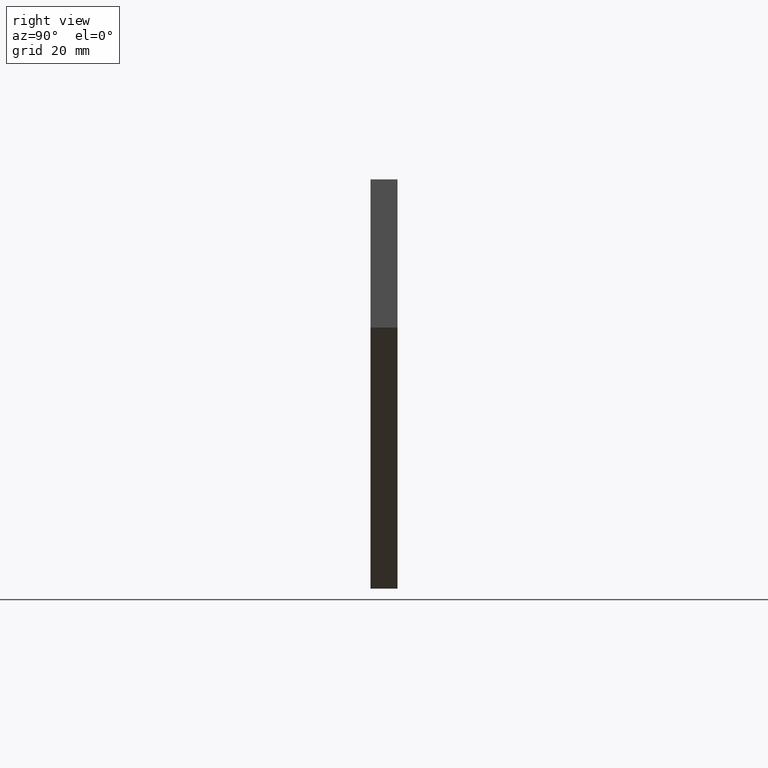
[diagram: clean part render]
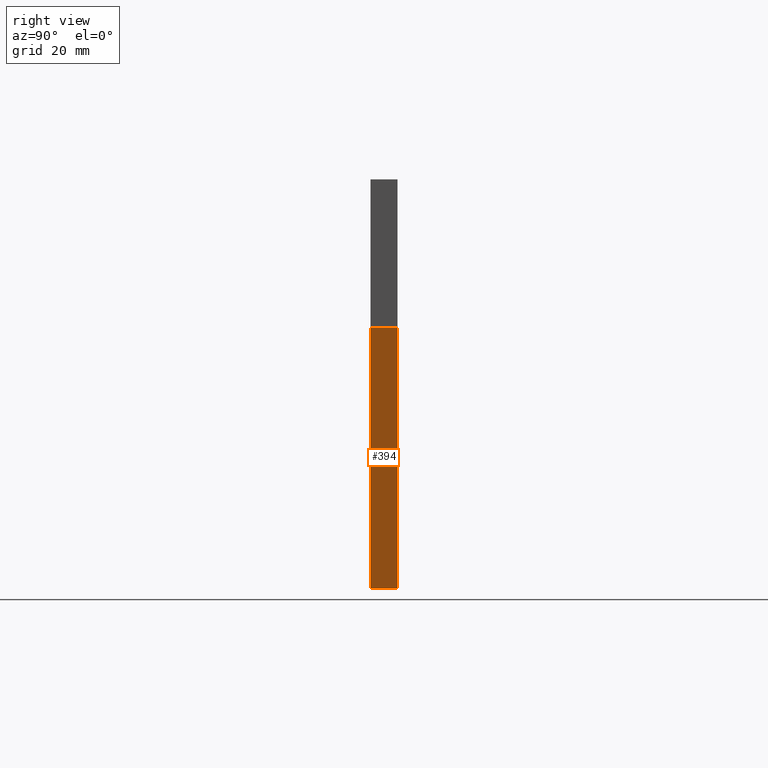
[diagram: same view with one face highlighted and labeled with its STEP entity id]
A machine part, right view. The second image highlights one B-rep face of the part: STEP entity #394.
In plain terms, the highlighted planar face has unit normal (-0.4957, 0, 0.8685).
Its self-contained STEP definition (entity closure, byte-faithful):
#21=LINE('',#592,#39);
#28=LINE('',#617,#46);
#30=LINE('',#665,#48);
#34=LINE('',#672,#52);
#39=VECTOR('',#472,1000.);
#46=VECTOR('',#495,10.);
#48=VECTOR('',#553,1000.);
#52=VECTOR('',#561,1000.);
#59=PLANE('',#451);
#115=FACE_OUTER_BOUND('',#166,.T.);
#166=EDGE_LOOP('',(#343,#344,#345,#346));
#208=VERTEX_POINT('',#589);
#209=VERTEX_POINT('',#591);
#219=VERTEX_POINT('',#615);
#237=VERTEX_POINT('',#664);
#244=EDGE_CURVE('',#209,#208,#21,.T.);
#257=EDGE_CURVE('',#209,#219,#28,.T.);
#275=EDGE_CURVE('',#219,#237,#30,.T.);
#279=EDGE_CURVE('',#237,#208,#34,.T.);
#343=ORIENTED_EDGE('',*,*,#244,.T.);
#344=ORIENTED_EDGE('',*,*,#279,.F.);
#345=ORIENTED_EDGE('',*,*,#275,.F.);
#346=ORIENTED_EDGE('',*,*,#257,.F.);
#394=ADVANCED_FACE('',(#115),#59,.F.);
#451=AXIS2_PLACEMENT_3D('',#671,#559,#560);
#472=DIRECTION('',(-0.868496911613889,0.,-0.49569457785731));
#495=DIRECTION('',(0.,1.,0.));
#553=DIRECTION('',(-0.868496911613889,0.,-0.49569457785731));
#559=DIRECTION('center_axis',(-0.49569457785731,0.,0.868496911613889));
#560=DIRECTION('ref_axis',(0.868496911613889,0.,0.495694577857311));
#561=DIRECTION('',(0.,-1.,0.));
#589=CARTESIAN_POINT('',(17.4,0.,-17.4));
#591=CARTESIAN_POINT('',(124.941888,0.,43.9795283106746));
#592=CARTESIAN_POINT('',(17.4,0.,-17.4));
#615=CARTESIAN_POINT('',(124.941888,6.35,43.9795283106746));
#617=CARTESIAN_POINT('',(124.941888,0.,43.9795283106746));
#664=CARTESIAN_POINT('',(17.4,6.35,-17.4));
#665=CARTESIAN_POINT('',(17.4,6.35,-17.4));
#671=CARTESIAN_POINT('Origin',(17.4,6.35,-17.4));
#672=CARTESIAN_POINT('',(17.4,6.35,-17.4));